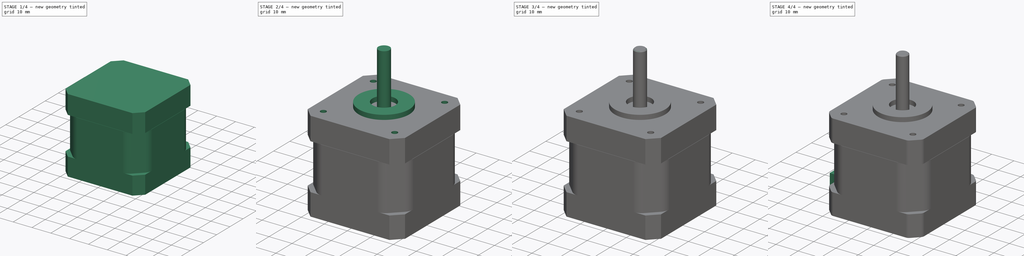
[diagram: build sequence overview — one tinted view per stage of 4, left to right]
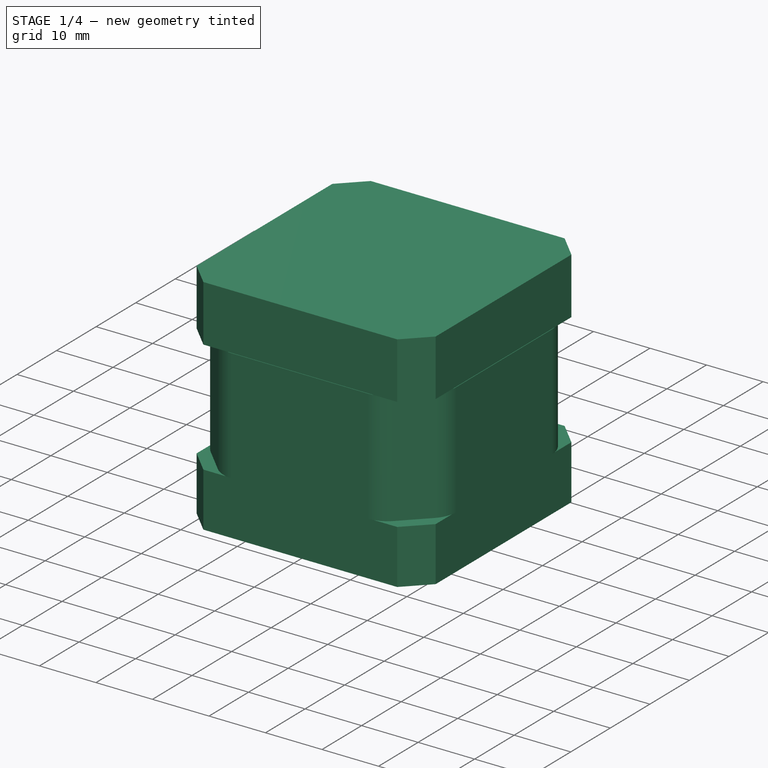
[diagram: stage 1 of 4 — iso view after this stage's code; geometry added in this stage tinted green]
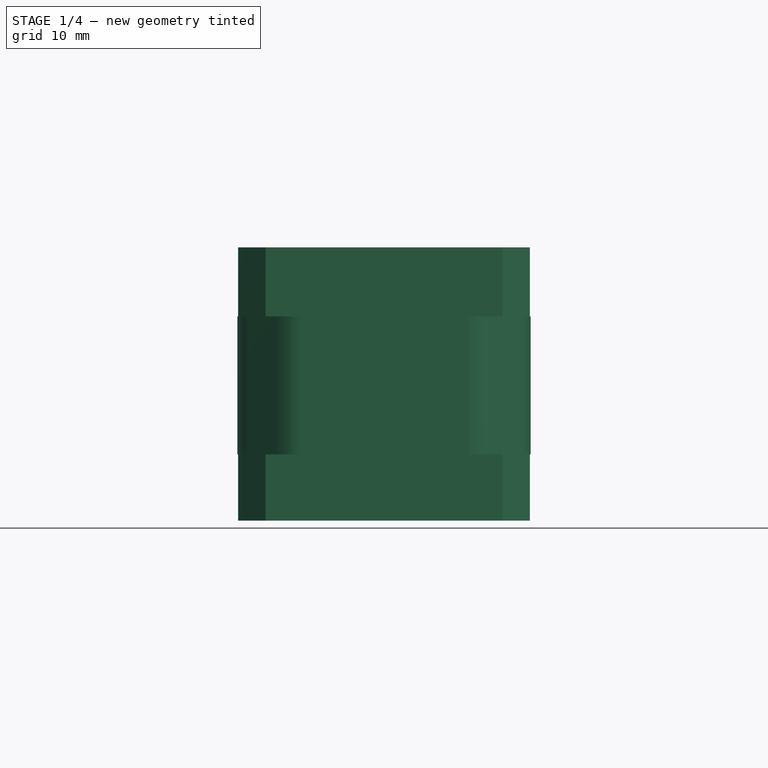
[diagram: stage 1 of 4 — front view after this stage's code; geometry added in this stage tinted green]
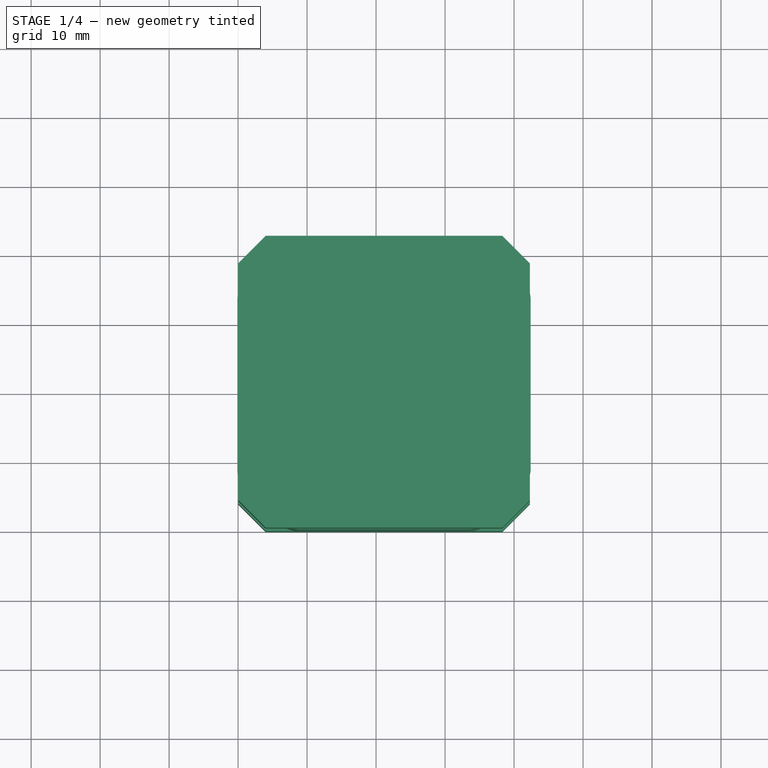
[diagram: stage 1 of 4 — top view after this stage's code; geometry added in this stage tinted green]
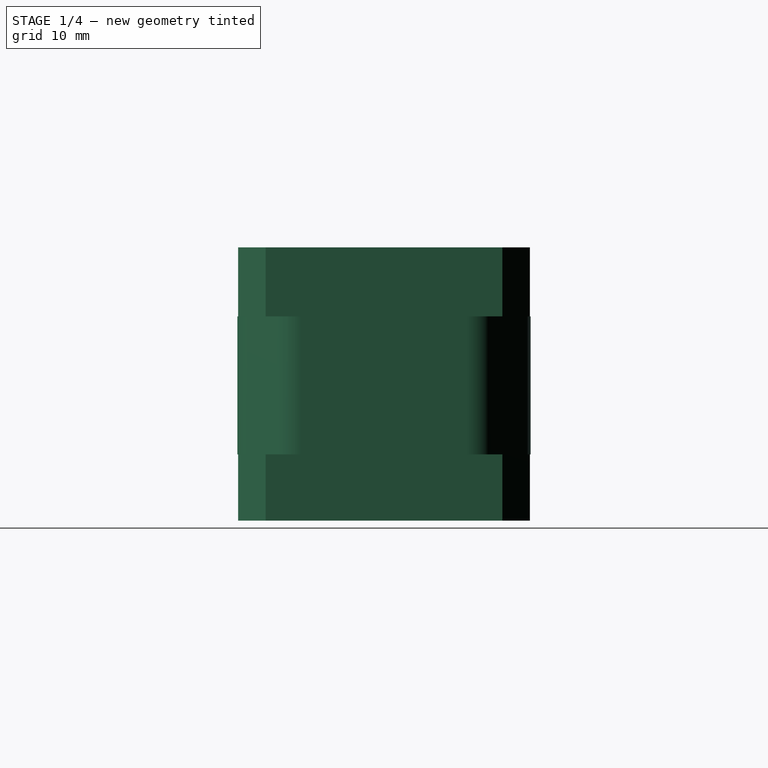
[diagram: stage 1 of 4 — right view after this stage's code; geometry added in this stage tinted green]
FCSTD DOCUMENT  (FreeCAD 0.18R4 (GitTag))
Label: Stepper motor Nema 17 42BYGH 38mm
License: All rights reserved
LicenseURL: http://en.wikipedia.org/wiki/All_rights_reserved
objects: Sketcher::SketchObject×9, PartDesign::Pad×6, PartDesign::Pocket×2, PartDesign::Hole×1, PartDesign::Chamfer×1, PartDesign::Fillet×1, PartDesign::Body×1
note: 30 computed .brp shape members not serialized (recipe doc carries the construction recipe); baked Part::Feature solids carry a one-line shape summary decoded from their .brp

FEATURE [Sketcher::SketchObject] Sketch
  MapMode = 5
  Support = -> [XY_Plane]
  sketch-geometry (8):
    g0: LineSegment StartX=4 StartY=0 StartZ=0 EndX=0 EndY=4 EndZ=0
    g1: LineSegment StartX=0 StartY=4 StartZ=0 EndX=0 EndY=38.3 EndZ=0
    g2: LineSegment StartX=0 StartY=38.3 StartZ=0 EndX=4 EndY=42.3 EndZ=0
    g3: LineSegment StartX=4 StartY=42.3 StartZ=0 EndX=38.3 EndY=42.3 EndZ=0
    g4: LineSegment StartX=38.3 StartY=42.3 StartZ=0 EndX=42.3 EndY=38.3 EndZ=0
    g5: LineSegment StartX=42.3 StartY=38.3 StartZ=0 EndX=42.3 EndY=4 EndZ=0
    g6: LineSegment StartX=42.3 StartY=4 StartZ=0 EndX=38.3 EndY=0 EndZ=0
    g7: LineSegment StartX=38.3 StartY=0 StartZ=0 EndX=4 EndY=0 EndZ=0
  constraints (24):
    c: PointOnObject(g0,g-1)
    c: PointOnObject(g0,g-2)
    c: Coincident(g0,g1)
    c: Vertical(g1)
    c: Coincident(g1,g2)
    c: Coincident(g2,g3)
    c: Horizontal(g3)
    c: Coincident(g3,g4)
    c: Coincident(g4,g5)
    c: Vertical(g5)
    c: Coincident(g5,g6)
    c: PointOnObject(g6,g-1)
    c: Coincident(g6,g7)
    c: Coincident(g7,g0)
    c: Angle(g0,g-1) = 0.785398
    c: Perpendicular(g2,g0)
    c: Parallel(g2,g6)
    c: Parallel(g4,g0)
    c: Equal(g7,g1)
    c: Equal(g0,g6)
    c: Equal(g6,g4)
    c: Equal(g4,g2)
    c: Distance(g1,g3) = 4
    c: Distance(g0,g5) = 42.3
FEATURE [PartDesign::Pad] Pad
  Length = 9.6
  Length2 = 100
  Profile = -> Sketch
  Type = 0
FEATURE [Sketcher::SketchObject] Sketch004
  ExternalGeometry = -> [Pad]
  MapMode = 5
  Placement = pos=(0,0,9.6) rot=(0,0,1;0rad)
  Support = -> [Pad]
  sketch-geometry (16):
    g0: LineSegment StartX=5.60711 StartY=1.36447 StartZ=0 EndX=1.36447 EndY=5.60711 EndZ=0
    g1: LineSegment StartX=-0.1 StartY=9.14264 StartZ=0 EndX=-0.1 EndY=33.1574 EndZ=0
    g2: LineSegment StartX=1.36447 StartY=36.6929 StartZ=0 EndX=5.60711 EndY=40.9355 EndZ=0
    g3: LineSegment StartX=9.14264 StartY=42.4 StartZ=0 EndX=33.1574 EndY=42.4 EndZ=0
    g4: LineSegment StartX=36.6929 StartY=40.9355 StartZ=0 EndX=40.9355 EndY=36.6929 EndZ=0
    g5: LineSegment StartX=42.4 StartY=33.1574 StartZ=0 EndX=42.4 EndY=9.14264 EndZ=0
    g6: LineSegment StartX=40.9355 StartY=5.60711 StartZ=0 EndX=36.6929 EndY=1.36447 EndZ=0
    g7: LineSegment StartX=33.1574 StartY=-0.1 StartZ=0 EndX=9.14264 EndY=-0.1 EndZ=0
    g8: ArcOfCircle CenterX=4.9 CenterY=9.14264 CenterZ=0 NormalX=0 NormalY=0 NormalZ=1 AngleXU=0 Radius=5 StartAngle=3.14159 EndAngle=3.92699
    g9: ArcOfCircle CenterX=9.14264 CenterY=4.9 CenterZ=0 NormalX=0 NormalY=0 NormalZ=1 AngleXU=0 Radius=5 StartAngle=3.92699 EndAngle=4.71239
    g10: ArcOfCircle CenterX=33.1574 CenterY=4.9 CenterZ=0 NormalX=0 NormalY=0 NormalZ=1 AngleXU=0 Radius=5 StartAngle=4.71239 EndAngle=5.49779
    g11: ArcOfCircle CenterX=37.4 CenterY=9.14264 CenterZ=0 NormalX=0 NormalY=0 NormalZ=1 AngleXU=0 Radius=5 StartAngle=5.49779 EndAngle=6.28319
    g12: ArcOfCircle CenterX=37.4 CenterY=33.1574 CenterZ=0 NormalX=0 NormalY=0 NormalZ=1 AngleXU=0 Radius=5 StartAngle=0 EndAngle=0.785398
    g13: ArcOfCircle CenterX=33.1574 CenterY=37.4 CenterZ=0 NormalX=0 NormalY=0 NormalZ=1 AngleXU=0 Radius=5 StartAngle=0.785398 EndAngle=1.5708
    g14: ArcOfCircle CenterX=9.14264 CenterY=37.4 CenterZ=0 NormalX=0 NormalY=0 NormalZ=1 AngleXU=0 Radius=5 StartAngle=1.5708 EndAngle=2.35619
    g15: ArcOfCircle CenterX=4.9 CenterY=33.1574 CenterZ=0 NormalX=0 NormalY=0 NormalZ=1 AngleXU=0 Radius=5 StartAngle=2.35619 EndAngle=3.14159
  constraints (40):
    c: Vertical(g1)
    c: Horizontal(g3)
    c: Vertical(g5)
    c: Horizontal(g7)
    c: Parallel(g0,g-6)
    c: Parallel(g2,g-3)
    c: Parallel(g4,g-4)
    c: Parallel(g6,g-5)
    c: Equal(g2,g4)
    c: Equal(g4,g0)
    c: Equal(g0,g6)
    c: Tangent(g0,g8) = 1.5708
    c: Tangent(g1,g8) = 1.5708
    c: Tangent(g0,g9) = 1.5708
    c: Tangent(g7,g9) = 1.5708
    c: Tangent(g6,g10) = 1.5708
    c: Tangent(g7,g10) = 1.5708
    c: Tangent(g5,g11) = 1.5708
    c: Tangent(g6,g11) = 1.5708
    c: Tangent(g4,g12) = 1.5708
    c: Tangent(g5,g12) = 1.5708
    c: Tangent(g3,g13) = 1.5708
    c: Tangent(g4,g13) = 1.5708
    c: Tangent(g2,g14) = 1.5708
    c: Tangent(g3,g14) = 1.5708
    c: Tangent(g1,g15) = 1.5708
    c: Tangent(g2,g15) = 1.5708
    c: Equal(g15,g14)
    c: Equal(g14,g13)
    c: Equal(g13,g12)
    c: Equal(g12,g11)
    c: Equal(g11,g10)
    c: Equal(g10,g9)
    c: Equal(g9,g8)
    c: DistanceX(g1,g-3) = 0.1
    c: DistanceY(g-3,g3) = 0.1
    c: DistanceX(g-4,g5) = 0.1
    c: DistanceY(g7,g-6) = 0.1
    c: Distance(g0) = 6
    c: Radius(g10) = 5
FEATURE [PartDesign::Pad] Pad003
  BaseFeature = -> Pad
  Length = 20
  Length2 = 100
  Profile = -> Sketch004
  Type = 0
FEATURE [Sketcher::SketchObject] Sketch005
  ExternalGeometry = -> [Pad003]
  MapMode = 5
  Placement = pos=(0,0,29.6) rot=(0,0,1;0rad)
  Support = -> [Pad003]
  sketch-geometry (8):
    g0: LineSegment StartX=0 StartY=38.3 StartZ=0 EndX=4 EndY=42.3 EndZ=0
    g1: LineSegment StartX=4 StartY=42.3 StartZ=0 EndX=38.3 EndY=42.3 EndZ=0
    g2: LineSegment StartX=38.3 StartY=42.3 StartZ=0 EndX=42.3 EndY=38.3 EndZ=0
    g3: LineSegment StartX=42.3 StartY=38.3 StartZ=0 EndX=42.3 EndY=4 EndZ=0
    g4: LineSegment StartX=42.3 StartY=4 StartZ=0 EndX=38.3 EndY=0 EndZ=0
    g5: LineSegment StartX=38.3 StartY=0 StartZ=0 EndX=4 EndY=-1e-16 EndZ=0
    g6: LineSegment StartX=4 StartY=-1e-16 StartZ=0 EndX=0 EndY=4 EndZ=0
    g7: LineSegment StartX=0 StartY=4 StartZ=0 EndX=0 EndY=38.3 EndZ=0
  constraints (16):
    c: Coincident(g0,g1)
    c: Coincident(g1,g2)
    c: Coincident(g2,g3)
    c: Coincident(g3,g4)
    c: Coincident(g4,g5)
    c: Coincident(g5,g6)
    c: Coincident(g6,g7)
    c: Coincident(g7,g0)
    c: Coincident(g6,g-3)
    c: Coincident(g5,g-3)
    c: Coincident(g4,g-5)
    c: Coincident(g3,g-5)
    c: Coincident(g1,g-6)
    c: Coincident(g2,g-6)
    c: Coincident(g0,g-4)
    c: Coincident(g-4,g0)
FEATURE [PartDesign::Pad] Pad004
  BaseFeature = -> Pad003
  Length = 10
  Length2 = 100
  Profile = -> Sketch005
  Type = 0
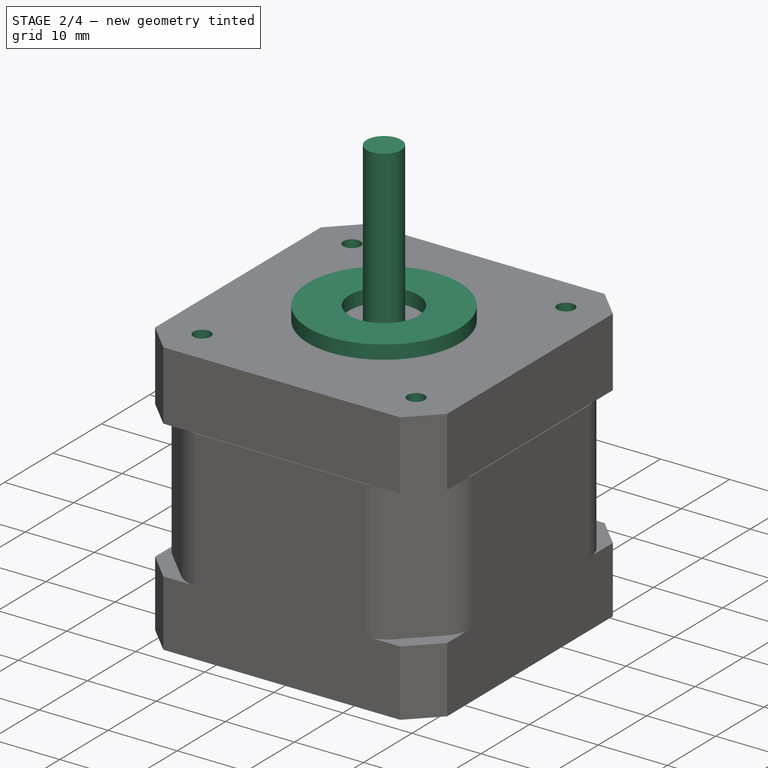
[diagram: stage 2 of 4 — iso view after this stage's code; geometry added in this stage tinted green]
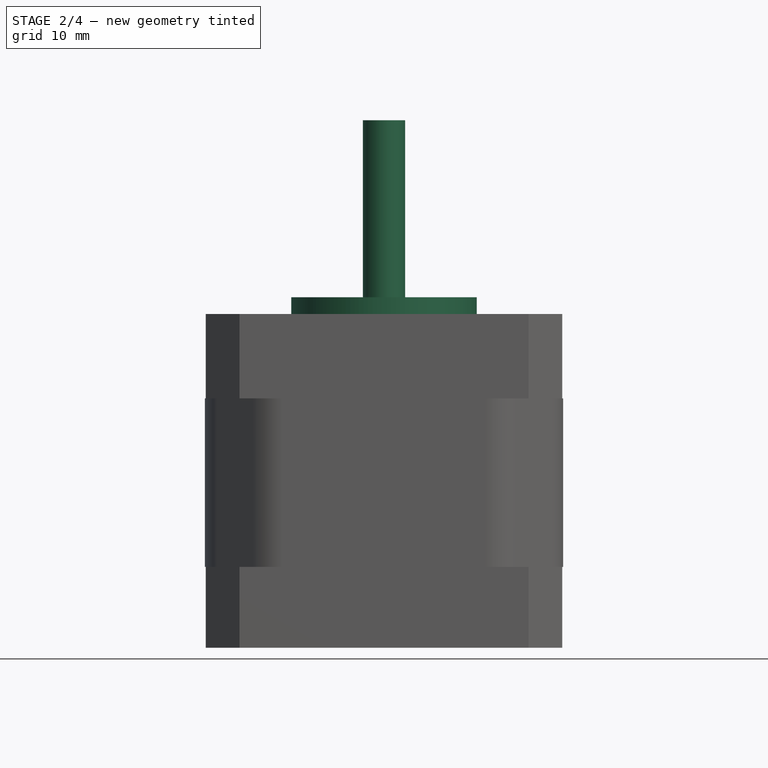
[diagram: stage 2 of 4 — front view after this stage's code; geometry added in this stage tinted green]
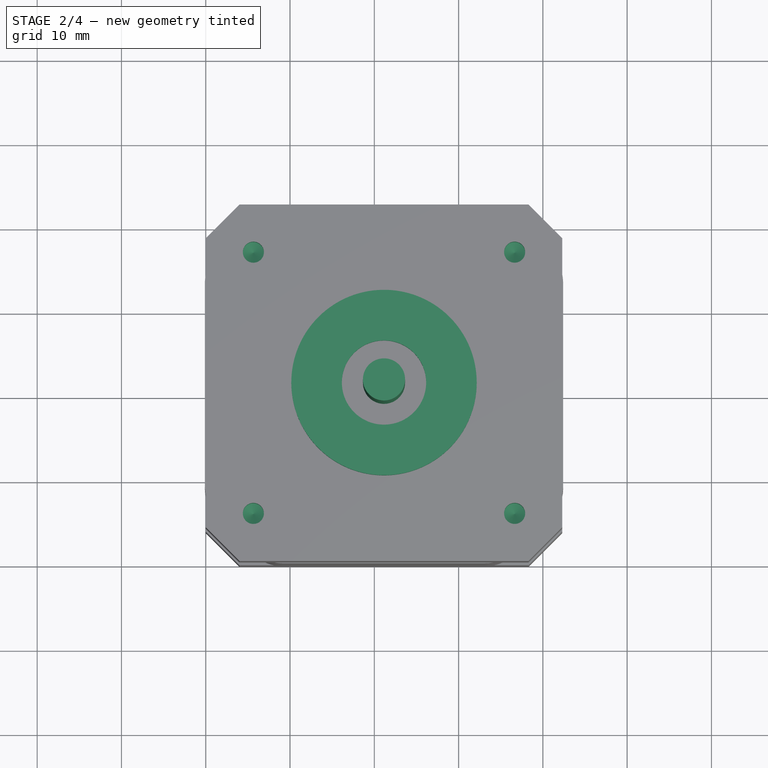
[diagram: stage 2 of 4 — top view after this stage's code; geometry added in this stage tinted green]
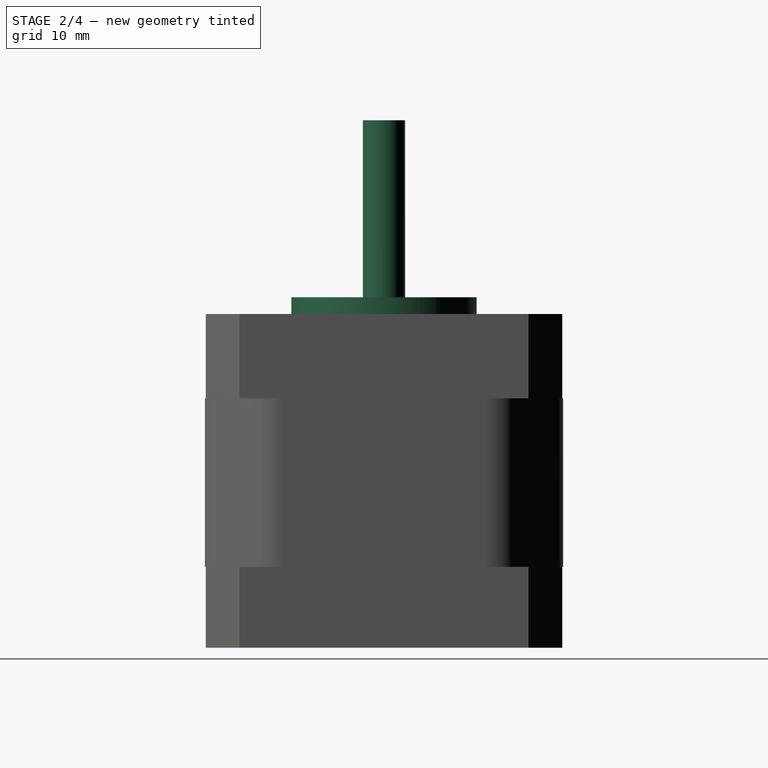
[diagram: stage 2 of 4 — right view after this stage's code; geometry added in this stage tinted green]
FEATURE [Sketcher::SketchObject] Sketch001
  ExternalGeometry = -> [Pad]
  MapMode = 5
  Placement = pos=(0,0,39.6) rot=(0,0,1;0rad)
  Support = -> [Pad004]
  sketch-geometry (4):
    g0: LineSegment [constr] StartX=38.3 StartY=42.3 StartZ=0 EndX=4 EndY=0 EndZ=0
    g1: LineSegment [constr] StartX=-9e-16 StartY=4 StartZ=0 EndX=42.3 EndY=38.3 EndZ=0
    g2: Circle CenterX=21.15 CenterY=21.15 CenterZ=0 NormalX=0 NormalY=0 NormalZ=1 AngleXU=0 Radius=11
    g3: Circle CenterX=21.15 CenterY=21.15 CenterZ=0 NormalX=0 NormalY=0 NormalZ=1 AngleXU=0 Radius=5
  constraints (9):
    c: Radius(g2) = 11
    c: Coincident(g3,g2)
    c: Diameter(g3) = 10
    c: PointOnObject(g2,g0)
    c: PointOnObject(g2,g1)
    c: Coincident(g1,g-3)
    c: Coincident(g0,g-3)
    c: Coincident(g0,g-4)
    c: Coincident(g1,g-4)
FEATURE [PartDesign::Pad] Pad001
  BaseFeature = -> Pad004
  Length = 2
  Length2 = 100
  Profile = -> Sketch001
  Type = 0
FEATURE [Sketcher::SketchObject] Sketch002
  ExternalGeometry = -> [Pad001]
  MapMode = 5
  Placement = pos=(0,0,39.6) rot=(0,0,1;0rad)
  Support = -> [Pad001]
  sketch-geometry (1):
    g0: Circle CenterX=21.15 CenterY=21.15 CenterZ=0 NormalX=0 NormalY=0 NormalZ=1 AngleXU=0 Radius=2.5
  constraints (2):
    c: Diameter(g0) = 5
    c: Coincident(g0,g-3)
FEATURE [PartDesign::Pad] Pad002
  BaseFeature = -> Pad001
  Length = 23
  Length2 = 100
  Profile = -> Sketch002
  Type = 0
FEATURE [Sketcher::SketchObject] Sketch003
  ExternalGeometry = -> [Pad002]
  MapMode = 5
  Placement = pos=(0,0,39.6) rot=(0,0,1;0rad)
  Support = -> [Pad002]
  sketch-geometry (7):
    g0: Circle CenterX=5.65 CenterY=36.65 CenterZ=0 NormalX=0 NormalY=0 NormalZ=1 AngleXU=0 Radius=1.5
    g1: Circle CenterX=36.65 CenterY=36.65 CenterZ=0 NormalX=0 NormalY=0 NormalZ=1 AngleXU=0 Radius=1.5
    g2: Circle CenterX=36.65 CenterY=5.65 CenterZ=0 NormalX=0 NormalY=0 NormalZ=1 AngleXU=0 Radius=1.5
    g3: Circle CenterX=5.65 CenterY=5.65 CenterZ=0 NormalX=0 NormalY=0 NormalZ=1 AngleXU=0 Radius=1.5
    g4: LineSegment [constr] StartX=5.65 StartY=36.65 StartZ=0 EndX=0 EndY=36.65 EndZ=0
    g5: LineSegment [constr] StartX=5.65 StartY=5.65 StartZ=0 EndX=5.65 EndY=0 EndZ=0
    g6: LineSegment [constr] StartX=36.65 StartY=5.65 StartZ=0 EndX=42.3 EndY=5.65 EndZ=0
  constraints (21):
    c: Horizontal(g3,g2)
    c: Vertical(g0,g3)
    c: Vertical(g1,g2)
    c: Horizontal(g0,g1)
    c: Equal(g0,g1)
    c: Equal(g1,g2)
    c: Equal(g2,g3)
    c: Distance(g3,g0) = 31
    c: Distance(g3,g2) = 31
    c: Diameter(g1) = 3
    c: Coincident(g4,g0)
    c: PointOnObject(g4,g-2)
    c: Coincident(g5,g3)
    c: PointOnObject(g5,g-1)
    c: Coincident(g6,g2)
    c: Horizontal(g6)
    c: Vertical(g5)
    c: Horizontal(g4)
    c: Equal(g4,g5)
    c: Equal(g5,g6)
    c: PointOnObject(g6,g-4)
FEATURE [PartDesign::Hole] Hole
  BaseFeature = -> Pad002
  Depth = 3.8
  DepthType = 0
  Diameter = 2.5
  DrillPoint = 1
  DrillPointAngle = 118
  HoleCutCountersinkAngle = 90
  HoleCutDepth = 0
  HoleCutDiameter = 3
  HoleCutType = 0
  ModelActualThread = false
  Profile = -> Sketch003
  Tapered = false
  TaperedAngle = 90
  ThreadAngle = 60
  ThreadClass = 0
  ThreadCutOffInner = 0.0541266
  ThreadCutOffOuter = 0.108253
  ThreadDirection = 1
  ThreadFit = 0
  ThreadPitch = 0.5
  ThreadSize = 3
  ThreadType = 1
  Threaded = true
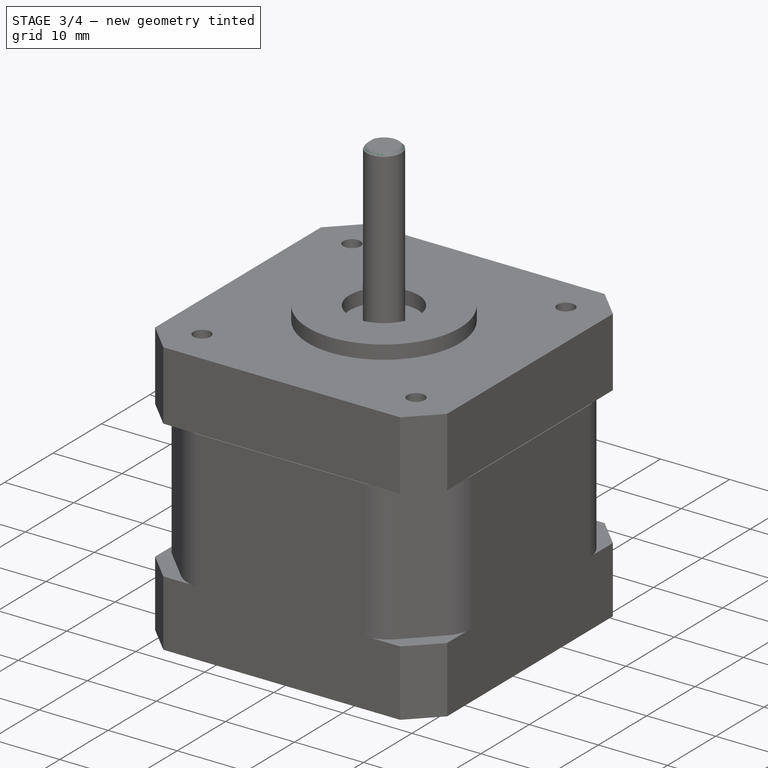
[diagram: stage 3 of 4 — iso view after this stage's code; geometry added in this stage tinted green]
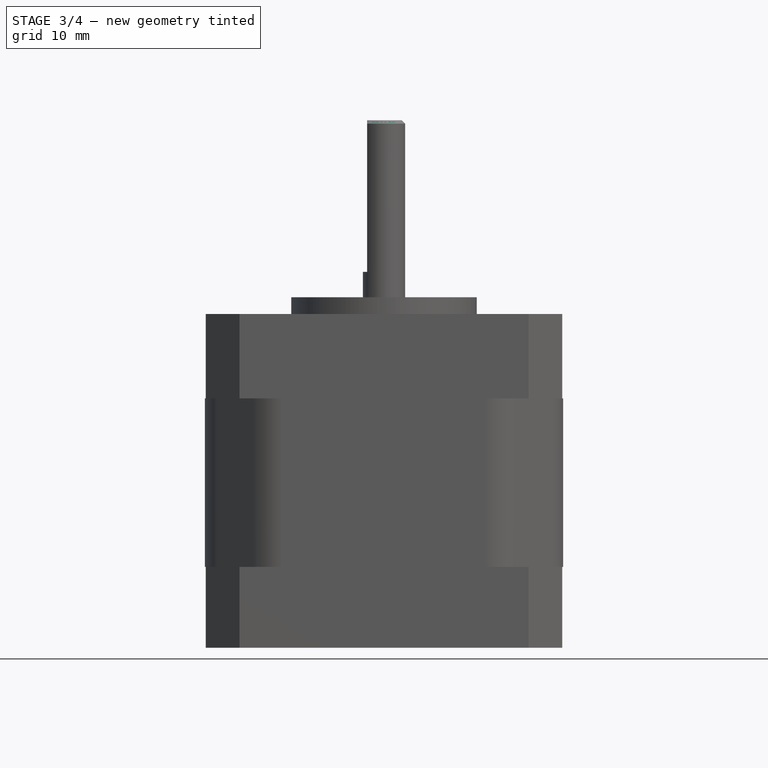
[diagram: stage 3 of 4 — front view after this stage's code; geometry added in this stage tinted green]
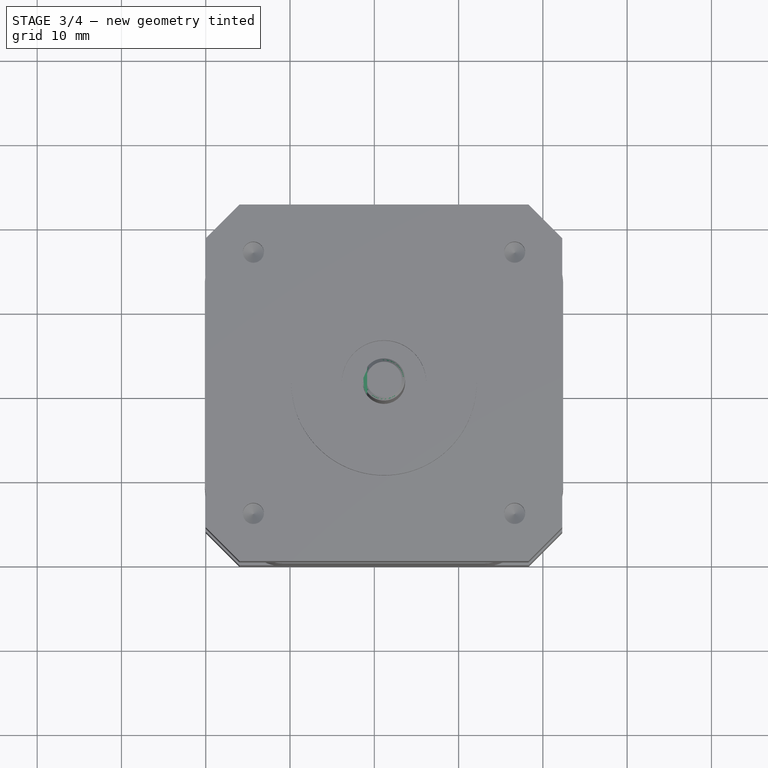
[diagram: stage 3 of 4 — top view after this stage's code; geometry added in this stage tinted green]
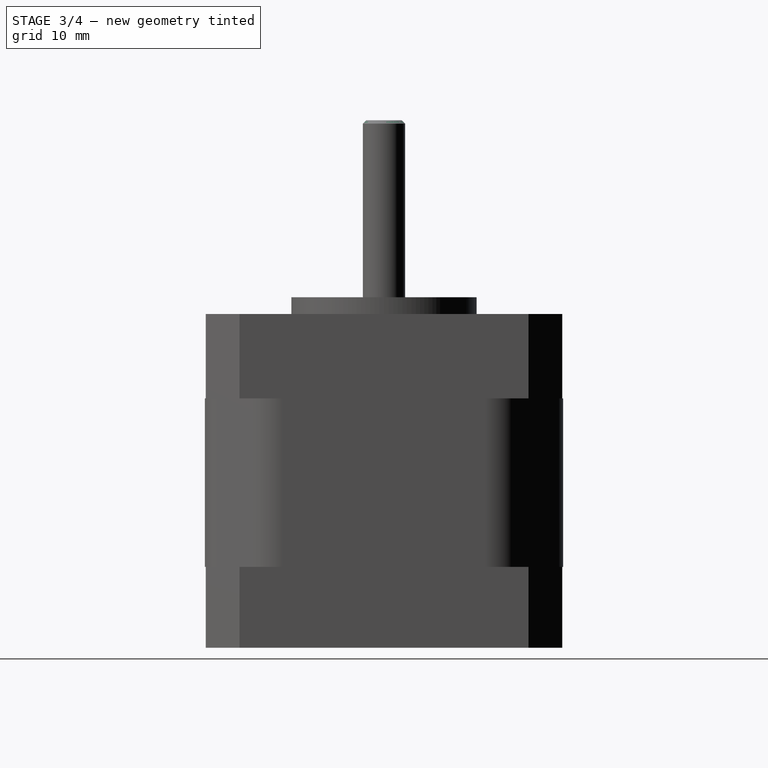
[diagram: stage 3 of 4 — right view after this stage's code; geometry added in this stage tinted green]
FEATURE [Sketcher::SketchObject] Sketch006
  ExternalGeometry = -> [Hole]
  MapMode = 5
  Placement = pos=(0,0,62.6) rot=(0,0,1;0rad)
  Support = -> [Hole]
  sketch-geometry (2):
    g0: ArcOfCircle CenterX=21.15 CenterY=21.15 CenterZ=0 NormalX=0 NormalY=0 NormalZ=1 AngleXU=0 Radius=2.5 StartAngle=2.49809 EndAngle=3.78509
    g1: LineSegment StartX=19.15 StartY=22.65 StartZ=0 EndX=19.15 EndY=19.65 EndZ=0
  constraints (6):
    c: Coincident(g1,g0)
    c: Coincident(g1,g0)
    c: Vertical(g1)
    c: Distance(g0,g1) = 2
    c: Coincident(g0,g-4)
    c: PointOnObject(g0,g-4)
FEATURE [PartDesign::Pocket] Pocket
  BaseFeature = -> Hole
  Length = 18
  Length2 = 100
  Profile = -> Sketch006
  Type = 0
FEATURE [PartDesign::Chamfer] Chamfer
  Base = -> Pocket [Edge161]
  BaseFeature = -> Pocket
  Size = 0.4
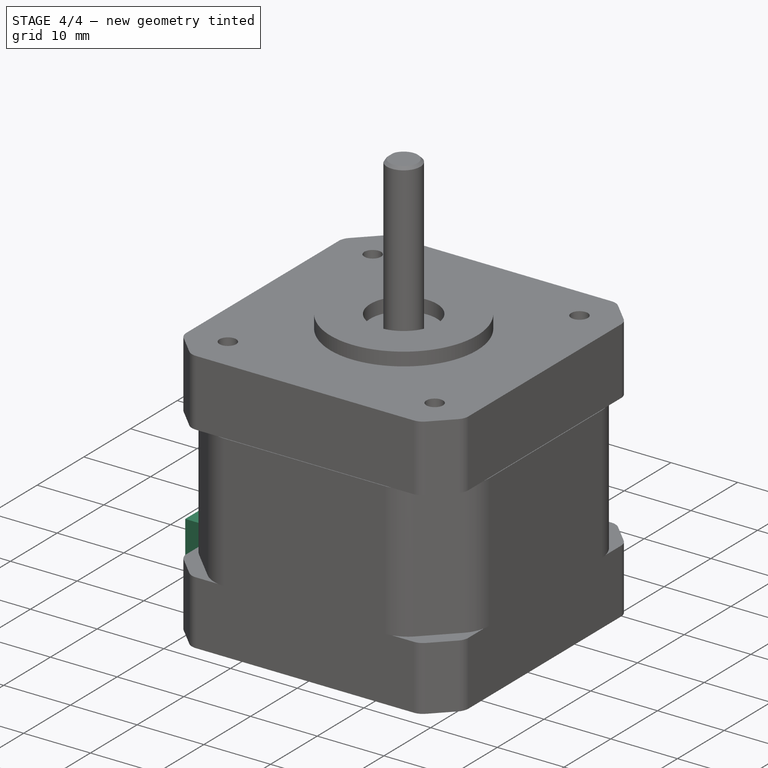
[diagram: stage 4 of 4 — iso view after this stage's code; geometry added in this stage tinted green]
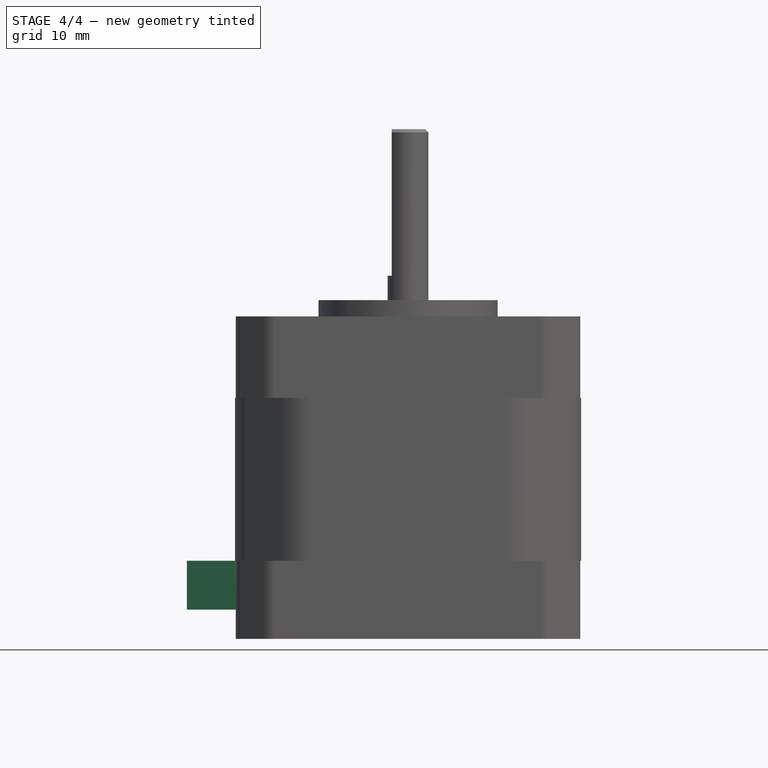
[diagram: stage 4 of 4 — front view after this stage's code; geometry added in this stage tinted green]
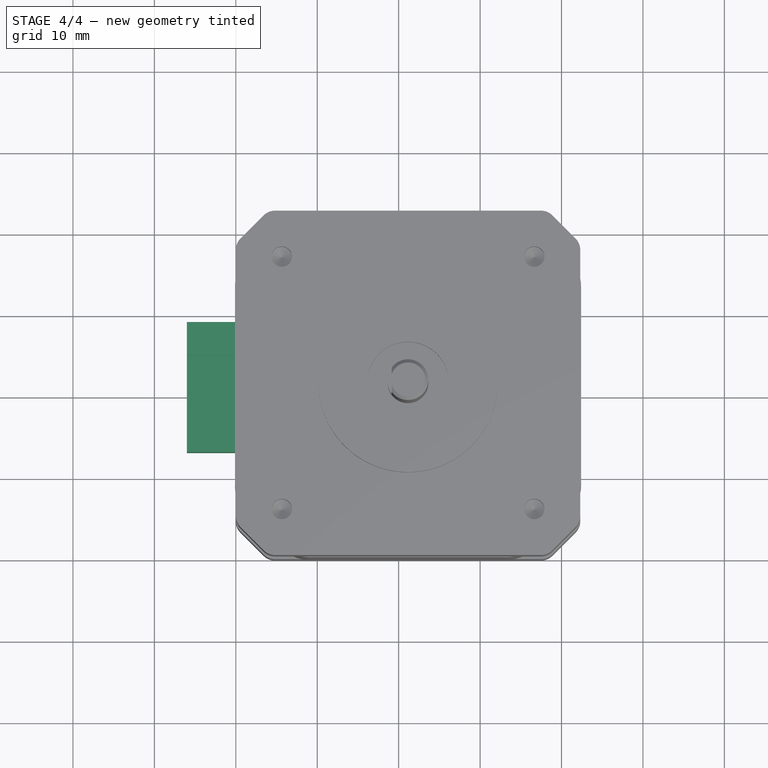
[diagram: stage 4 of 4 — top view after this stage's code; geometry added in this stage tinted green]
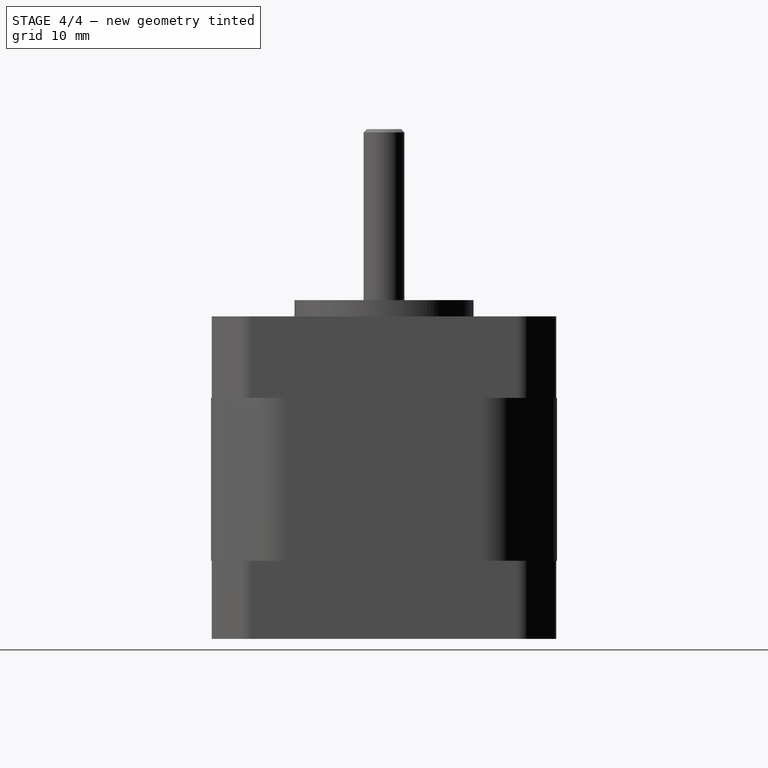
[diagram: stage 4 of 4 — right view after this stage's code; geometry added in this stage tinted green]
FEATURE [PartDesign::Fillet] Fillet
  Base = -> Chamfer [Edge46,Edge40,Edge34,Edge33,Edge156,Edge153,Edge154,Edge164,Edge36,Edge44,Edge48,Edge52,Edge165,Edge160,Edge161,Edge158]
  BaseFeature = -> Chamfer
  Radius = 2
FEATURE [Sketcher::SketchObject] Sketch007
  ExternalGeometry = -> [Fillet]
  MapMode = 5
  Placement = pos=(0,0,0) rot=(1,0,0;3.14159rad)
  Support = -> [Fillet]
  sketch-geometry (1):
    g0: Circle CenterX=21.15 CenterY=-21.15 CenterZ=0 NormalX=0 NormalY=0 NormalZ=1 AngleXU=0 Radius=5
  constraints (2):
    c: Coincident(g0,g-3)
    c: Tangent(g0,g-3)
FEATURE [PartDesign::Pocket] Pocket001
  BaseFeature = -> Fillet
  Length = 3.8
  Length2 = 100
  Profile = -> Sketch007
  Type = 0
FEATURE [Sketcher::SketchObject] Sketch008
  ExternalGeometry = -> [Pocket001]
  MapMode = 5
  Placement = pos=(0,0,0) rot=(0.57735,-0.57735,-0.57735;2.0944rad)
  Support = -> [Pocket001]
  sketch-geometry (15):
    g0: LineSegment StartX=-29.15 StartY=9.6 StartZ=0 EndX=-29.15 EndY=3.6 EndZ=0
    g1: LineSegment StartX=-29.15 StartY=3.6 StartZ=0 EndX=-13.15 EndY=3.6 EndZ=0
    g2: LineSegment StartX=-13.15 StartY=3.6 StartZ=0 EndX=-13.15 EndY=9.6 EndZ=0
    g3: LineSegment StartX=-13.15 StartY=9.6 StartZ=0 EndX=-17.15 EndY=9.6 EndZ=0
    g4: LineSegment StartX=-14.65 StartY=5.1 StartZ=0 EndX=-27.65 EndY=5.1 EndZ=0
    g5: LineSegment StartX=-25.15 StartY=9.6 StartZ=0 EndX=-29.15 EndY=9.6 EndZ=0
    g6: LineSegment [constr] StartX=-27.65 StartY=5.1 StartZ=0 EndX=-27.65 EndY=3.6 EndZ=0
    g7: LineSegment [constr] StartX=-21.15 StartY=9.6 StartZ=0 EndX=-21.15 EndY=0 EndZ=0
    g8: LineSegment StartX=-25.15 StartY=9.6 StartZ=0 EndX=-25.15 EndY=8.6 EndZ=0
    g9: LineSegment StartX=-25.15 StartY=8.6 StartZ=0 EndX=-27.65 EndY=8.6 EndZ=0
    g10: LineSegment StartX=-27.65 StartY=8.6 StartZ=0 EndX=-27.65 EndY=5.1 EndZ=0
    g11: LineSegment StartX=-17.15 StartY=9.6 StartZ=0 EndX=-17.15 EndY=8.6 EndZ=0
    g12: LineSegment StartX=-17.15 StartY=8.6 StartZ=0 EndX=-14.65 EndY=8.6 EndZ=0
    g13: LineSegment StartX=-14.65 StartY=8.6 StartZ=0 EndX=-14.65 EndY=5.1 EndZ=0
    g14: LineSegment [constr] StartX=-27.65 StartY=5.1 StartZ=0 EndX=-29.15 EndY=5.1 EndZ=0
  constraints (44):
    c: PointOnObject(g0,g-3)
    c: Vertical(g0)
    c: Coincident(g0,g1)
    c: Coincident(g1,g2)
    c: PointOnObject(g2,g-3)
    c: Vertical(g2)
    c: Coincident(g2,g3)
    c: PointOnObject(g3,g-3)
    c: Horizontal(g4)
    c: PointOnObject(g5,g-3)
    c: Coincident(g5,g0)
    c: Equal(g5,g3)
    c: Coincident(g6,g4)
    c: PointOnObject(g6,g1)
    c: Vertical(g6)
    c: PointOnObject(g7,g-3)
    c: PointOnObject(g7,g-1)
    c: Symmetric(g-4,g-1,g7)
    c: Symmetric(g0,g1,g7)
    c: Distance(g1) = 16
    c: Distance(g0) = 6
    c: Distance(g5) = 4
    c: Coincident(g5,g8)
    c: Vertical(g8)
    c: Coincident(g8,g9)
    c: Horizontal(g9)
    c: Coincident(g9,g10)
    c: Coincident(g10,g4)
    c: Vertical(g10)
    c: Coincident(g3,g11)
    c: Vertical(g11)
    c: Coincident(g11,g12)
    c: Horizontal(g12)
    c: Coincident(g12,g13)
    c: Coincident(g13,g4)
    c: Vertical(g13)
    c: Coincident(g14,g4)
    c: PointOnObject(g14,g0)
    c: Horizontal(g14)
    c: Horizontal(g8,g11)
    c: Equal(g9,g12)
    c: Equal(g14,g6)
    c: Distance(g4,g2) = 1.5
    c: Distance(g8) = 1
FEATURE [PartDesign::Pad] Pad005
  BaseFeature = -> Pocket001
  Length = 6
  Length2 = 100
  Profile = -> Sketch008
  Type = 0
FEATURE [PartDesign::Body] Body
  Group = -> [Sketch,Pad,Pad003,Pad004,Sketch001,Pad001,Sketch002,Pad002,Sketch003,Hole,Sketch004,Sketch005,Sketch006,Pocket,Chamfer,Fillet,Sketch007,Pocket001,Sketch008,Pad005]
  Origin = -> Origin
  Tip = -> Pad005
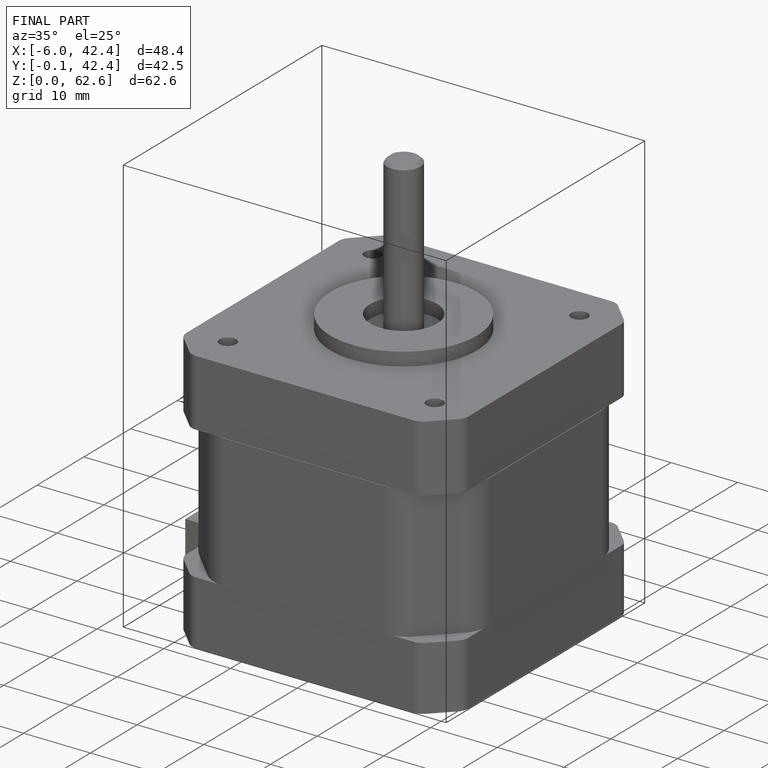
[diagram: finished part — iso view with bounding-box wireframe]
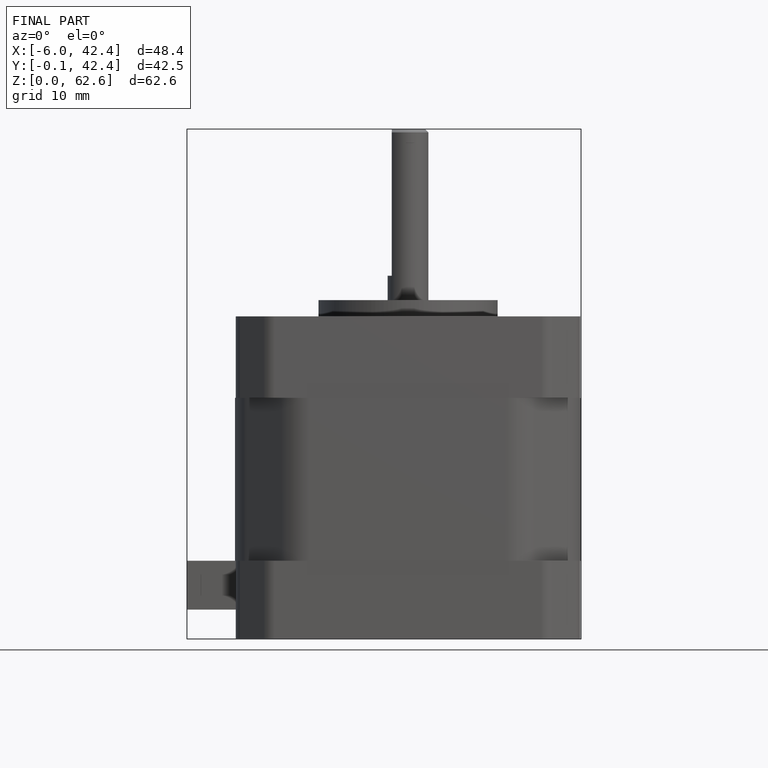
[diagram: finished part — front view with bounding-box wireframe]
